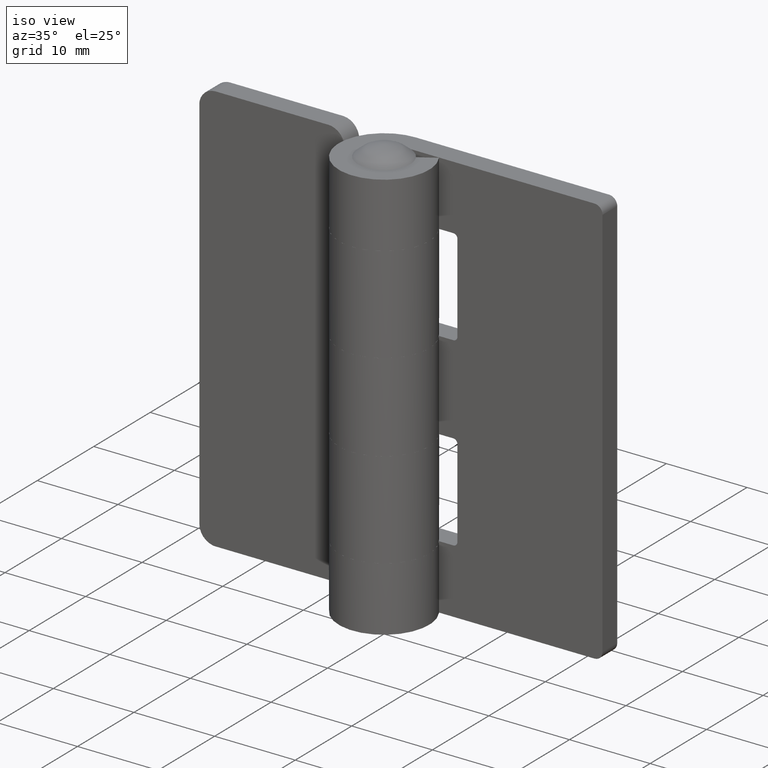
[diagram: clean part render]
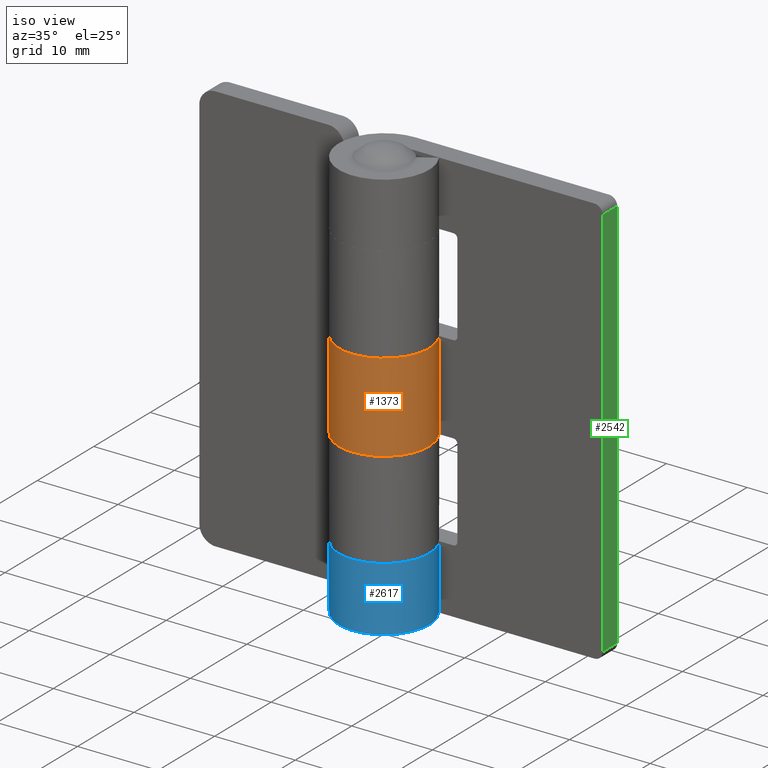
[diagram: same view with three faces highlighted in distinct colors, each labeled with its STEP entity id]
A machine part, iso view with three faces highlighted in distinct colors.
Their STEP definitions:

[orange] entity #1373 — the highlighted face is a freeform B-spline surface patch.
#1258=CARTESIAN_POINT('',(0.167251603932724,5.597500844214577,31.275000000000009));
#1259=CARTESIAN_POINT('',(0.167251603932724,5.597500844214577,19.718125000000001));
#1260=CARTESIAN_POINT('',(-6.827907752782355,5.806514054705617,31.275000000000006));
#1261=CARTESIAN_POINT('',(-6.827907752782355,5.806514054705617,19.718125000000008));
#1262=CARTESIAN_POINT('',(-5.497945138603047,-1.064231202752531,31.275000000000009));
#1263=CARTESIAN_POINT('',(-5.497945138603047,-1.064231202752531,19.718125000000001));
#1264=CARTESIAN_POINT('',(-4.167982524423739,-7.934976460210679,31.275000000000006));
#1265=CARTESIAN_POINT('',(-4.167982524423739,-7.934976460210679,19.718125000000008));
#1266=CARTESIAN_POINT('',(2.243912087774169,-5.130774536299752,31.275000000000009));
#1267=CARTESIAN_POINT('',(2.243912087774169,-5.130774536299752,19.718125000000001));
#1268=CARTESIAN_POINT('',(8.655806699972075,-2.326572612388827,31.275000000000006));
#1269=CARTESIAN_POINT('',(8.655806699972075,-2.326572612388827,19.718125000000008));
#1270=CARTESIAN_POINT('',(4.513861227791595,3.314369565428804,31.275000000000009));
#1271=CARTESIAN_POINT('',(4.513861227791595,3.314369565428804,19.718125000000001));
#1279=(BOUNDED_SURFACE()B_SPLINE_SURFACE(1,2,((#1258,#1260,#1262,#1264,#1266,#1268,#1270),(#1259,#1261,#1263,#1265,#1267,#1269,#1271)),.UNSPECIFIED.,.F.,.F.,.U.)B_SPLINE_SURFACE_WITH_KNOTS((2,2),(3,2,2,3),(0.0,11.556875000000010),(0.0,10.764344354865170,21.528688709730350,32.293033064595519),.UNSPECIFIED.)GEOMETRIC_REPRESENTATION_ITEM()RATIONAL_B_SPLINE_SURFACE(((1.0,0.624788514543960,1.0,0.624788514543960,1.0,0.624788514543960,1.0),(1.0,0.624788514543960,1.0,0.624788514543960,1.0,0.624788514543960,1.0)))REPRESENTATION_ITEM('')SURFACE());
#1280=CARTESIAN_POINT('',(4.759988939062770,2.949999000000000,20.0));
#1281=VERTEX_POINT('',#1280);
#1282=CARTESIAN_POINT('',(0.0,5.599999000000000,20.0));
#1283=VERTEX_POINT('',#1282);
#1284=CARTESIAN_POINT('',(4.759988939062770,2.949999000000000,20.0));
#1285=CARTESIAN_POINT('',(5.023145024513203,2.525675266893482,20.000000000000011));
#1286=CARTESIAN_POINT('',(5.355538671664251,1.782903646959724,20.000000000000060));
#1287=CARTESIAN_POINT('',(5.555538848861406,0.820772339627528,19.999999999999911));
#1288=CARTESIAN_POINT('',(5.615753626716171,0.034890419836112,20.000000000000242));
#1289=CARTESIAN_POINT('',(5.577585857651815,-0.696315334186309,19.999999999999819));
#1290=CARTESIAN_POINT('',(5.412077401624689,-1.507193020942702,20.000000000000199));
#1291=CARTESIAN_POINT('',(5.097362736965261,-2.396585186478360,20.000000000000160));
#1292=CARTESIAN_POINT('',(4.641785086645903,-3.182410256039019,19.999999999999620));
#1293=CARTESIAN_POINT('',(4.025788213316076,-3.920936624210982,20.000000000000291));
#1294=CARTESIAN_POINT('',(3.308685530846681,-4.564937972315665,19.999999999999879));
#1295=CARTESIAN_POINT('',(2.358797889885910,-5.122841522203347,20.000000000000028));
#1296=CARTESIAN_POINT('',(1.353667936038156,-5.461766048612695,20.0));
#1297=CARTESIAN_POINT('',(0.307110782965539,-5.625955867219092,19.999999999999989));
#1298=CARTESIAN_POINT('',(-0.677934784202103,-5.591689703570742,20.000000000000021));
#1299=CARTESIAN_POINT('',(-1.523460592370765,-5.402585292627806,19.999999999999989));
#1300=CARTESIAN_POINT('',(-2.212562013000709,-5.160186064936379,20.000000000000011));
#1301=CARTESIAN_POINT('',(-2.971317197541945,-4.782715867051741,20.000000000000011));
#1302=CARTESIAN_POINT('',(-3.729064841848915,-4.216493115340933,20.0));
#1303=CARTESIAN_POINT('',(-4.427745699076587,-3.472756962494362,20.0));
#1304=CARTESIAN_POINT('',(-4.949406643503677,-2.684221264671827,20.0));
#1305=CARTESIAN_POINT('',(-5.298116482714899,-1.869347242729476,20.000000000000028));
#1306=CARTESIAN_POINT('',(-5.515156958314969,-1.071261169244119,19.999999999999869));
#1307=CARTESIAN_POINT('',(-5.629579675831034,-0.172896768255546,20.000000000000540));
#1308=CARTESIAN_POINT('',(-5.566366300609877,0.906330614294340,19.999999999999918));
#1309=CARTESIAN_POINT('',(-5.268822138097701,2.005790042853584,20.000000000000039));
#1310=CARTESIAN_POINT('',(-4.749809626434129,3.040648098412726,19.999999999999972));
#1311=CARTESIAN_POINT('',(-4.101548228831144,3.857774829136933,20.000000000000050));
#1312=CARTESIAN_POINT('',(-3.305512709041480,4.556131676473623,19.999999999999648));
#1313=CARTESIAN_POINT('',(-2.397703231088295,5.106833104347037,20.000000000002441));
#1314=CARTESIAN_POINT('',(-1.248184208622402,5.506123461330772,19.999999999993250));
#1315=CARTESIAN_POINT('',(-0.422478672672124,5.600077497270317,20.000000000003698));
#1316=CARTESIAN_POINT('',(0.0,5.599999000000000,20.0));
#1317=B_SPLINE_CURVE_WITH_KNOTS('',3,(#1284,#1285,#1286,#1287,#1288,#1289,#1290,#1291,#1292,#1293,#1294,#1295,#1296,#1297,#1298,#1299,#1300,#1301,#1302,#1303,#1304,#1305,#1306,#1307,#1308,#1309,#1310,#1311,#1312,#1313,#1314,#1315,#1316),.UNSPECIFIED.,.F.,.U.,(4,1,1,1,1,1,1,1,1,1,1,1,1,1,1,1,1,1,1,1,1,1,1,1,1,1,1,1,1,1,4),(0.000000119761953,1.497862609561384,2.419627147905860,2.938123127027478,3.859891384164190,4.608827415408346,5.415384183495792,6.682821393260660,7.316520333294132,8.295856368778466,9.563292044324999,10.600291541497800,11.464450072865230,12.731891181748191,13.538420523621349,14.056937973728781,14.921034974282710,16.073247105474540,16.879812220817950,17.974406332383069,18.896174995798681,19.529889488102750,20.451656152274261,21.603861550419129,22.756035259826970,23.850637758117500,25.060465247798810,25.867017167743100,27.019229965362360,28.229043012991511,29.496464256141820),.UNSPECIFIED.);
#1318=EDGE_CURVE('',#1281,#1283,#1317,.T.);
#1319=ORIENTED_EDGE('',*,*,#1318,.F.);
#1320=CARTESIAN_POINT('',(4.759988939062770,2.949999000000000,31.0));
#1321=VERTEX_POINT('',#1320);
#1322=CARTESIAN_POINT('',(4.759988939062770,2.949999000000000,31.0));
#1323=CARTESIAN_POINT('',(4.759988939062770,2.949999000000000,20.0));
#1324=QUASI_UNIFORM_CURVE('',1,(#1322,#1323),.UNSPECIFIED.,.F.,.U.);
#1325=EDGE_CURVE('',#1321,#1281,#1324,.T.);
#1326=ORIENTED_EDGE('',*,*,#1325,.F.);
#1327=CARTESIAN_POINT('',(0.0,5.599999000000000,31.0));
#1328=VERTEX_POINT('',#1327);
#1329=CARTESIAN_POINT('',(0.0,5.599999000000000,31.0));
#1330=CARTESIAN_POINT('',(-0.384066083438544,5.600052919460453,31.000000000000028));
#1331=CARTESIAN_POINT('',(-0.979340031959740,5.538505364615721,30.999999999999961));
#1332=CARTESIAN_POINT('',(-1.926733808056622,5.284131201095491,31.000000000000060));
#1333=CARTESIAN_POINT('',(-2.842649488286051,4.873210226810580,30.999999999999751));
#1334=CARTESIAN_POINT('',(-3.714948726018339,4.233564825241056,31.000000000000568));
#1335=CARTESIAN_POINT('',(-4.373409878392278,3.530815052351510,30.999999999998820));
#1336=CARTESIAN_POINT('',(-4.930978925717003,2.722536440955587,31.000000000000622));
#1337=CARTESIAN_POINT('',(-5.363018442030387,1.751354772987644,30.999999999999869));
#1338=CARTESIAN_POINT('',(-5.605738450128296,0.599635948762113,30.999999999999631));
#1339=CARTESIAN_POINT('',(-5.613097056797217,-0.442803808404533,31.000000000002402));
#1340=CARTESIAN_POINT('',(-5.447355573926376,-1.391464933160091,30.999999999996181));
#1341=CARTESIAN_POINT('',(-5.131653898462362,-2.321659762379132,31.000000000002419));
#1342=CARTESIAN_POINT('',(-4.696029365947902,-3.096047738147178,30.999999999999378));
#1343=CARTESIAN_POINT('',(-4.133431152488361,-3.803358845340439,31.000000000000270));
#1344=CARTESIAN_POINT('',(-3.605323926020031,-4.310531589977764,30.999999999999901));
#1345=CARTESIAN_POINT('',(-2.854322285738193,-4.848022888544505,31.000000000000060));
#1346=CARTESIAN_POINT('',(-2.057265275055910,-5.239501087496809,30.999999999999979));
#1347=CARTESIAN_POINT('',(-1.095543873222195,-5.517773061123961,31.0));
#1348=CARTESIAN_POINT('',(-0.214472109741000,-5.621390650778021,30.999999999999989));
#1349=CARTESIAN_POINT('',(0.574026162124395,-5.583856559468640,31.000000000000050));
#1350=CARTESIAN_POINT('',(1.275556497622158,-5.466428571866209,30.999999999999950));
#1351=CARTESIAN_POINT('',(2.014814292195354,-5.250555736598798,30.999999999999879));
#1352=CARTESIAN_POINT('',(2.867972552511862,-4.845168139990618,31.000000000000728));
#1353=CARTESIAN_POINT('',(3.603747036132607,-4.315804505420961,31.0));
#1354=CARTESIAN_POINT('',(4.247907767840351,-3.681170872658278,31.000000000000060));
#1355=CARTESIAN_POINT('',(4.826402059897308,-2.910233628316465,30.999999999999911));
#1356=CARTESIAN_POINT('',(5.253283794787841,-2.022440702119737,31.000000000000181));
#1357=CARTESIAN_POINT('',(5.533842551587147,-1.021697457774017,30.999999999999570));
#1358=CARTESIAN_POINT('',(5.633651107445485,-0.061611431834365,31.000000000001609));
#1359=CARTESIAN_POINT('',(5.543462676597043,0.975437155951597,30.999999999994589));
#1360=CARTESIAN_POINT('',(5.274205398588357,1.980967983298769,31.000000000014470));
#1361=CARTESIAN_POINT('',(4.962356766046721,2.623573464059922,30.999999999991250));
#1362=CARTESIAN_POINT('',(4.759988939062770,2.949999000000000,31.0));
#1363=B_SPLINE_CURVE_WITH_KNOTS('',3,(#1329,#1330,#1331,#1332,#1333,#1334,#1335,#1336,#1337,#1338,#1339,#1340,#1341,#1342,#1343,#1344,#1345,#1346,#1347,#1348,#1349,#1350,#1351,#1352,#1353,#1354,#1355,#1356,#1357,#1358,#1359,#1360,#1361,#1362),.UNSPECIFIED.,.F.,.U.,(4,1,1,1,1,1,1,1,1,1,1,1,1,1,1,1,1,1,1,1,1,1,1,1,1,1,1,1,1,1,1,4),(0.000000119892452,1.152187426566503,1.785913785813104,2.938123127145367,4.147945452731307,5.012107806534758,5.818644901172011,7.086095111648103,8.180657203151526,9.332850886437431,10.197013096943699,11.061175700922410,12.270992305785599,12.847100954386400,13.768882128446620,14.460211514508080,15.612379804280710,16.418910925009591,17.455915332886310,18.262459554154251,18.780956852275430,19.587505944479972,20.566888571904482,21.603861550455729,22.295151770897601,23.274534552915089,24.484356397434411,25.233303251149380,26.385509897456011,27.364898052555610,28.344278595476869,29.496464256141511),.UNSPECIFIED.);
#1364=EDGE_CURVE('',#1328,#1321,#1363,.T.);
#1365=ORIENTED_EDGE('',*,*,#1364,.F.);
#1366=CARTESIAN_POINT('',(0.0,5.599999000000000,31.0));
#1367=CARTESIAN_POINT('',(0.0,5.599999000000000,20.0));
#1368=QUASI_UNIFORM_CURVE('',1,(#1366,#1367),.UNSPECIFIED.,.F.,.U.);
#1369=EDGE_CURVE('',#1328,#1283,#1368,.T.);
#1370=ORIENTED_EDGE('',*,*,#1369,.T.);
#1371=EDGE_LOOP('',(#1319,#1326,#1365,#1370));
#1372=FACE_OUTER_BOUND('',#1371,.T.);
#1373=ADVANCED_FACE('',(#1372),#1279,.T.);

[blue] entity #2617 — the highlighted face is a freeform B-spline surface patch.
#2180=CARTESIAN_POINT('',(0.0,5.599999000000000,8.0));
#2181=VERTEX_POINT('',#2180);
#2187=CARTESIAN_POINT('',(4.759988939062770,2.949999000000000,8.0));
#2188=VERTEX_POINT('',#2187);
#2189=CARTESIAN_POINT('',(0.0,5.599999000000000,8.0));
#2190=CARTESIAN_POINT('',(-0.307252258732365,5.600011964403852,8.0));
#2191=CARTESIAN_POINT('',(-0.998579381814918,5.543004947380474,8.000000000000009));
#2192=CARTESIAN_POINT('',(-1.948118681914703,5.282786861650641,7.999999999999971));
#2193=CARTESIAN_POINT('',(-2.903149831231852,4.824382067107618,8.000000000000011));
#2194=CARTESIAN_POINT('',(-3.637629777804810,4.291652994334213,7.999999999999973));
#2195=CARTESIAN_POINT('',(-4.259178750461018,3.661577284266195,8.000000000000028));
#2196=CARTESIAN_POINT('',(-4.768462884701191,2.984604959799013,7.999999999999998));
#2197=CARTESIAN_POINT('',(-5.178367026006097,2.197849340200312,7.999999999999726));
#2198=CARTESIAN_POINT('',(-5.447350631347533,1.374272245185613,8.000000000000391));
#2199=CARTESIAN_POINT('',(-5.606539037279404,0.483817570256841,7.999999999999848));
#2200=CARTESIAN_POINT('',(-5.613383905690986,-0.481415168469012,7.999999999999859));
#2201=CARTESIAN_POINT('',(-5.437732774873934,-1.429121660355880,8.000000000000396));
#2202=CARTESIAN_POINT('',(-5.106345085934025,-2.373497183863889,7.999999999999825));
#2203=CARTESIAN_POINT('',(-4.609124481942651,-3.246852783662411,8.000000000000068));
#2204=CARTESIAN_POINT('',(-3.949464755521501,-4.001631712114072,7.999999999999992));
#2205=CARTESIAN_POINT('',(-3.241888122427891,-4.595581437597353,7.999999999999999));
#2206=CARTESIAN_POINT('',(-2.513582376912110,-5.031020402272255,8.000000000000002));
#2207=CARTESIAN_POINT('',(-1.637574240906982,-5.380290509779800,8.0));
#2208=CARTESIAN_POINT('',(-0.677696259804977,-5.594936081799410,7.999999999999996));
#2209=CARTESIAN_POINT('',(0.287281086316931,-5.618533621876298,8.000000000000007));
#2210=CARTESIAN_POINT('',(1.182699385797445,-5.492200238853298,7.999999999999989));
#2211=CARTESIAN_POINT('',(1.997403591514307,-5.258829329494233,7.999999999999971));
#2212=CARTESIAN_POINT('',(2.867972062618152,-4.845167850215614,8.000000000000181));
#2213=CARTESIAN_POINT('',(3.603747348932033,-4.315804953331998,7.999999999999998));
#2214=CARTESIAN_POINT('',(4.247896327801210,-3.681164320320271,8.000000000000011));
#2215=CARTESIAN_POINT('',(4.849584843709339,-2.879418951692764,7.999999999999994));
#2216=CARTESIAN_POINT('',(5.341589394848932,-1.828611339593878,8.000000000000004));
#2217=CARTESIAN_POINT('',(5.607307806953656,-0.621971836095646,7.999999999999987));
#2218=CARTESIAN_POINT('',(5.613726951921360,0.479010314931086,8.000000000000052));
#2219=CARTESIAN_POINT('',(5.454628600707789,1.331377374766783,7.999999999999824));
#2220=CARTESIAN_POINT('',(5.198330724372696,2.137270365858212,8.000000000000730));
#2221=CARTESIAN_POINT('',(4.962362868805687,2.623575280406874,7.999999999998889));
#2222=CARTESIAN_POINT('',(4.759988939062770,2.949999000000000,8.0));
#2223=B_SPLINE_CURVE_WITH_KNOTS('',3,(#2189,#2190,#2191,#2192,#2193,#2194,#2195,#2196,#2197,#2198,#2199,#2200,#2201,#2202,#2203,#2204,#2205,#2206,#2207,#2208,#2209,#2210,#2211,#2212,#2213,#2214,#2215,#2216,#2217,#2218,#2219,#2220,#2221,#2222),.UNSPECIFIED.,.F.,.U.,(4,1,1,1,1,1,1,1,1,1,1,1,1,1,1,1,1,1,1,1,1,1,1,1,1,1,1,1,1,1,1,4),(0.000000119892452,0.921764734770353,2.073965803992266,2.938123127145367,4.090332377082174,4.781666428397998,5.588212093149018,6.625205227575552,7.431712894266354,8.180657203151526,9.332850886437431,10.312239556692219,11.061175700922410,12.328610230182740,13.307997068183161,14.056937973798370,15.093872656465599,15.842808153436540,16.879812220875010,18.032019410230870,18.723345670712920,19.587505944479972,20.566888571904482,21.603861550455729,22.295151770897601,23.274534552915089,24.599583183143970,25.751795981044019,26.961613362950651,27.883381858895270,28.344278595476869,29.496464256141511),.UNSPECIFIED.);
#2224=EDGE_CURVE('',#2181,#2188,#2223,.T.);
#2363=CARTESIAN_POINT('',(0.0,5.599999000000000,0.0));
#2364=VERTEX_POINT('',#2363);
#2377=CARTESIAN_POINT('',(4.759988939062770,2.949999000000000,0.0));
#2378=VERTEX_POINT('',#2377);
#2384=CARTESIAN_POINT('',(4.759988939062770,2.949999000000000,0.0));
#2385=CARTESIAN_POINT('',(4.921858426690234,2.688842113675118,0.0));
#2386=CARTESIAN_POINT('',(5.228792788247892,2.088342260821566,0.0));
#2387=CARTESIAN_POINT('',(5.512546200495458,1.146086583368467,0.0));
#2388=CARTESIAN_POINT('',(5.614125539675736,0.246179515994648,0.0));
#2389=CARTESIAN_POINT('',(5.586798916916139,-0.619195947050563,0.0));
#2390=CARTESIAN_POINT('',(5.420508863742056,-1.529427034279944,0.0));
#2391=CARTESIAN_POINT('',(5.054584910149827,-2.484382414567571,0.0));
#2392=CARTESIAN_POINT('',(4.580151709667148,-3.256246713793321,0.0));
#2393=CARTESIAN_POINT('',(4.025794823952333,-3.920947265509206,0.0));
#2394=CARTESIAN_POINT('',(3.466428188624111,-4.423211008367750,0.0));
#2395=CARTESIAN_POINT('',(2.762087925061835,-4.892391710187379,0.0));
#2396=CARTESIAN_POINT('',(2.102377739587259,-5.210046337612273,0.0));
#2397=CARTESIAN_POINT('',(1.351325444887971,-5.450514325078383,0.0));
#2398=CARTESIAN_POINT('',(0.650626168970879,-5.578940598486717,0.0));
#2399=CARTESIAN_POINT('',(-0.098893045735097,-5.614594862271922,0.0));
#2400=CARTESIAN_POINT('',(-0.847036876829795,-5.553820295460304,0.0));
#2401=CARTESIAN_POINT('',(-1.523459058037899,-5.402591787525996,0.0));
#2402=CARTESIAN_POINT('',(-2.212565504603894,-5.160191499224538,0.0));
#2403=CARTESIAN_POINT('',(-2.902320685177464,-4.817010702604423,0.0));
#2404=CARTESIAN_POINT('',(-3.670126600553927,-4.267555992266841,0.0));
#2405=CARTESIAN_POINT('',(-4.263727304793314,-3.661157673449358,0.0));
#2406=CARTESIAN_POINT('',(-4.785378636395443,-2.946810635671356,0.0));
#2407=CARTESIAN_POINT('',(-5.146185020810756,-2.264964579750007,0.0));
#2408=CARTESIAN_POINT('',(-5.422398367329081,-1.464724045222903,0.0));
#2409=CARTESIAN_POINT('',(-5.593417722584882,-0.615367962603449,0.0));
#2410=CARTESIAN_POINT('',(-5.623588409883944,0.426131307497769,0.0));
#2411=CARTESIAN_POINT('',(-5.429877500720820,1.509937052184555,0.0));
#2412=CARTESIAN_POINT('',(-5.058202686897622,2.461598130217121,0.0));
#2413=CARTESIAN_POINT('',(-4.605024841414527,3.222923455667097,0.0));
#2414=CARTESIAN_POINT('',(-3.995210814689559,3.967824471946634,0.0));
#2415=CARTESIAN_POINT('',(-3.274185785816689,4.580929530678864,0.0));
#2416=CARTESIAN_POINT('',(-2.324349309700312,5.130683155500905,0.0));
#2417=CARTESIAN_POINT('',(-1.267402296670280,5.503951402785414,0.0));
#2418=CARTESIAN_POINT('',(-0.422476178150442,5.600076083277881,0.0));
#2419=CARTESIAN_POINT('',(0.0,5.599999000000000,0.0));
#2420=B_SPLINE_CURVE_WITH_KNOTS('',3,(#2384,#2385,#2386,#2387,#2388,#2389,#2390,#2391,#2392,#2393,#2394,#2395,#2396,#2397,#2398,#2399,#2400,#2401,#2402,#2403,#2404,#2405,#2406,#2407,#2408,#2409,#2410,#2411,#2412,#2413,#2414,#2415,#2416,#2417,#2418,#2419),.UNSPECIFIED.,.F.,.U.,(4,1,1,1,1,1,1,1,1,1,1,1,1,1,1,1,1,1,1,1,1,1,1,1,1,1,1,1,1,1,1,1,1,4),(0.000000119761953,0.921764734643705,2.016346377907127,2.938123127027478,3.629448300778410,4.608827415408346,5.703439383708165,6.682821393260660,7.316520333294132,8.295856368778466,8.929575417896906,9.851346792132560,10.485067370657379,11.291619252450090,11.982940509872179,12.731891181748191,13.538420523621349,14.056937973728781,14.921034974282710,15.842808153374870,16.879812220817950,17.455915332831690,18.492902454114951,19.184227908315549,19.990784815835870,21.085385337334639,22.295151770864091,23.274534552885932,24.138693436157329,24.945251826916731,26.155070681663521,26.961613362938721,28.229043012991511,29.496464256141820),.UNSPECIFIED.);
#2421=EDGE_CURVE('',#2378,#2364,#2420,.T.);
#2551=CARTESIAN_POINT('',(0.0,5.599999000000000,8.0));
#2552=CARTESIAN_POINT('',(0.0,5.599999000000000,0.0));
#2553=QUASI_UNIFORM_CURVE('',1,(#2551,#2552),.UNSPECIFIED.,.F.,.U.);
#2554=EDGE_CURVE('',#2181,#2364,#2553,.T.);
#2579=CARTESIAN_POINT('',(4.759988939062770,2.949999000000000,8.0));
#2580=CARTESIAN_POINT('',(4.759988939062770,2.949999000000000,0.0));
#2581=QUASI_UNIFORM_CURVE('',1,(#2579,#2580),.UNSPECIFIED.,.F.,.U.);
#2582=EDGE_CURVE('',#2188,#2378,#2581,.T.);
#2589=CARTESIAN_POINT('',(0.048868590064354,5.599785769197434,8.199999999999999));
#2590=CARTESIAN_POINT('',(0.048868590064354,5.599785769197434,-0.205000000000000));
#2591=CARTESIAN_POINT('',(-6.825308487250499,5.659775803721419,8.199999999999999));
#2592=CARTESIAN_POINT('',(-6.825308487250499,5.659775803721419,-0.205000000000000));
#2593=CARTESIAN_POINT('',(-5.493979764605806,-1.084516088448166,8.199999999999999));
#2594=CARTESIAN_POINT('',(-5.493979764605806,-1.084516088448166,-0.205000000000000));
#2595=CARTESIAN_POINT('',(-4.162651041961113,-7.828807980617753,8.199999999999999));
#2596=CARTESIAN_POINT('',(-4.162651041961113,-7.828807980617753,-0.205000000000000));
#2597=CARTESIAN_POINT('',(2.173089910815496,-5.161169348075383,8.199999999999999));
#2598=CARTESIAN_POINT('',(2.173089910815496,-5.161169348075383,-0.205000000000000));
#2599=CARTESIAN_POINT('',(8.508830863592104,-2.493530715533013,8.199999999999999));
#2600=CARTESIAN_POINT('',(8.508830863592104,-2.493530715533013,-0.205000000000000));
#2601=CARTESIAN_POINT('',(4.615105832157099,3.171874360372824,8.199999999999999));
#2602=CARTESIAN_POINT('',(4.615105832157099,3.171874360372824,-0.205000000000000));
#2610=(BOUNDED_SURFACE()B_SPLINE_SURFACE(1,2,((#2589,#2591,#2593,#2595,#2597,#2599,#2601),(#2590,#2592,#2594,#2596,#2598,#2600,#2602)),.UNSPECIFIED.,.F.,.F.,.U.)B_SPLINE_SURFACE_WITH_KNOTS((2,2),(3,2,2,3),(0.0,8.404999999999999),(0.0,10.644286232403390,21.288572464806780,31.932858697210168),.UNSPECIFIED.)GEOMETRIC_REPRESENTATION_ITEM()RATIONAL_B_SPLINE_SURFACE(((1.0,0.631578351302498,1.0,0.631578351302498,1.0,0.631578351302498,1.0),(1.0,0.631578351302498,1.0,0.631578351302498,1.0,0.631578351302498,1.0)))REPRESENTATION_ITEM('')SURFACE());
#2611=ORIENTED_EDGE('',*,*,#2224,.F.);
#2612=ORIENTED_EDGE('',*,*,#2554,.T.);
#2613=ORIENTED_EDGE('',*,*,#2421,.F.);
#2614=ORIENTED_EDGE('',*,*,#2582,.F.);
#2615=EDGE_LOOP('',(#2611,#2612,#2613,#2614));
#2616=FACE_OUTER_BOUND('',#2615,.T.);
#2617=ADVANCED_FACE('',(#2616),#2610,.T.);

[green] entity #2542 — the highlighted face is a freeform B-spline surface patch.
#2000=CARTESIAN_POINT('',(25.000008000000001,5.599999000000000,50.0));
#2001=VERTEX_POINT('',#2000);
#2022=CARTESIAN_POINT('',(25.000008000000001,2.999999000000000,50.0));
#2023=VERTEX_POINT('',#2022);
#2037=CARTESIAN_POINT('',(25.000008000000001,5.599999000000000,50.0));
#2038=CARTESIAN_POINT('',(25.000008000000001,2.999999000000000,50.0));
#2039=QUASI_UNIFORM_CURVE('',1,(#2037,#2038),.UNSPECIFIED.,.F.,.U.);
#2040=EDGE_CURVE('',#2001,#2023,#2039,.T.);
#2059=CARTESIAN_POINT('',(25.000008000000001,5.599999000000000,1.0));
#2060=VERTEX_POINT('',#2059);
#2076=CARTESIAN_POINT('',(25.000008000000001,2.999999000000000,1.0));
#2077=VERTEX_POINT('',#2076);
#2078=CARTESIAN_POINT('',(25.000008000000001,2.999999000000000,1.0));
#2079=CARTESIAN_POINT('',(25.000008000000001,5.599999000000000,1.0));
#2080=QUASI_UNIFORM_CURVE('',1,(#2078,#2079),.UNSPECIFIED.,.F.,.U.);
#2081=EDGE_CURVE('',#2077,#2060,#2080,.T.);
#2504=CARTESIAN_POINT('',(25.000008000000001,2.999999000000000,50.0));
#2505=CARTESIAN_POINT('',(25.000008000000001,2.999999000000000,1.0));
#2506=QUASI_UNIFORM_CURVE('',1,(#2504,#2505),.UNSPECIFIED.,.F.,.U.);
#2507=EDGE_CURVE('',#2023,#2077,#2506,.T.);
#2527=CARTESIAN_POINT('',(25.000008000000001,2.870129005039304,52.447549905028488));
#2528=CARTESIAN_POINT('',(25.000008000000001,2.870129005039304,-1.447551219310908));
#2529=CARTESIAN_POINT('',(25.000008000000001,5.729869064698130,52.447549905028488));
#2530=CARTESIAN_POINT('',(25.000008000000001,5.729869064698130,-1.447551219310908));
#2531=B_SPLINE_SURFACE_WITH_KNOTS('',1,1,((#2527,#2529),(#2528,#2530)),.UNSPECIFIED.,.F.,.F.,.U.,(2,2),(2,2),(0.0,53.895101124339398),(0.0,2.859740059658826),.UNSPECIFIED.);
#2532=ORIENTED_EDGE('',*,*,#2507,.T.);
#2533=ORIENTED_EDGE('',*,*,#2081,.T.);
#2534=CARTESIAN_POINT('',(25.000008000000001,5.599999000000000,50.0));
#2535=CARTESIAN_POINT('',(25.000008000000001,5.599999000000000,1.0));
#2536=QUASI_UNIFORM_CURVE('',1,(#2534,#2535),.UNSPECIFIED.,.F.,.U.);
#2537=EDGE_CURVE('',#2001,#2060,#2536,.T.);
#2538=ORIENTED_EDGE('',*,*,#2537,.F.);
#2539=ORIENTED_EDGE('',*,*,#2040,.T.);
#2540=EDGE_LOOP('',(#2532,#2533,#2538,#2539));
#2541=FACE_OUTER_BOUND('',#2540,.T.);
#2542=ADVANCED_FACE('',(#2541),#2531,.T.);